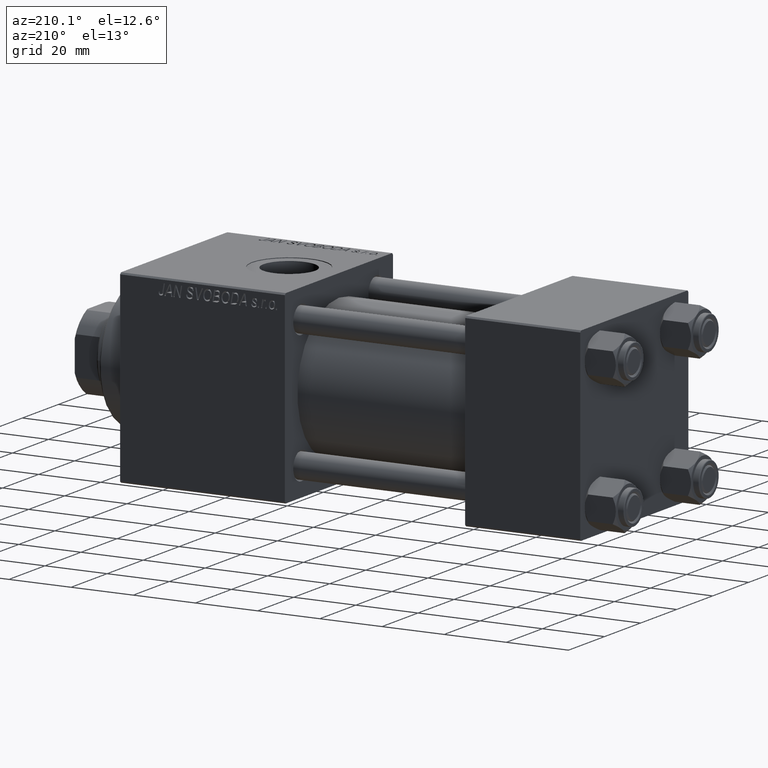
[diagram: clean part render]
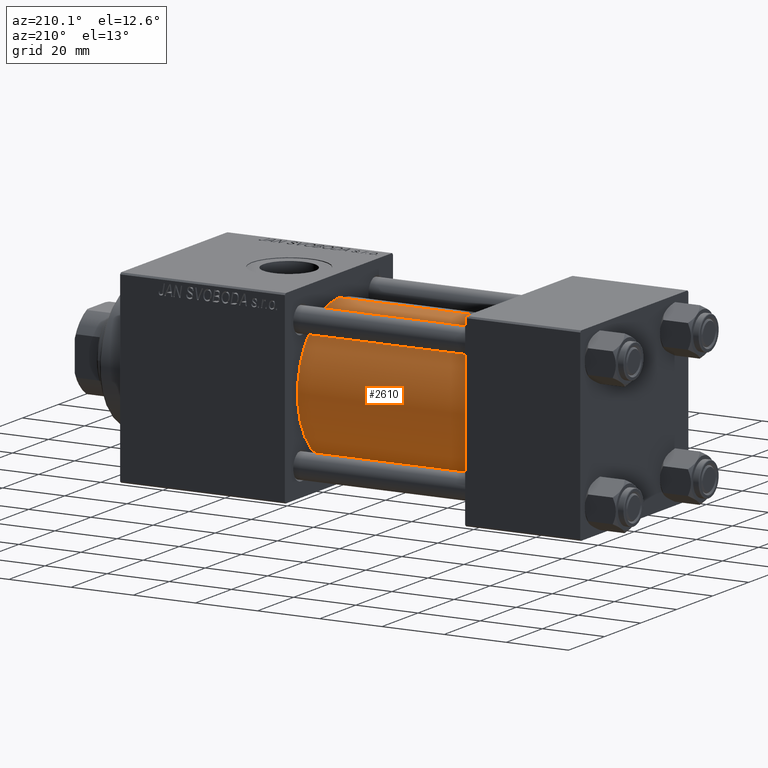
[diagram: same view with one face highlighted and labeled with its STEP entity id]
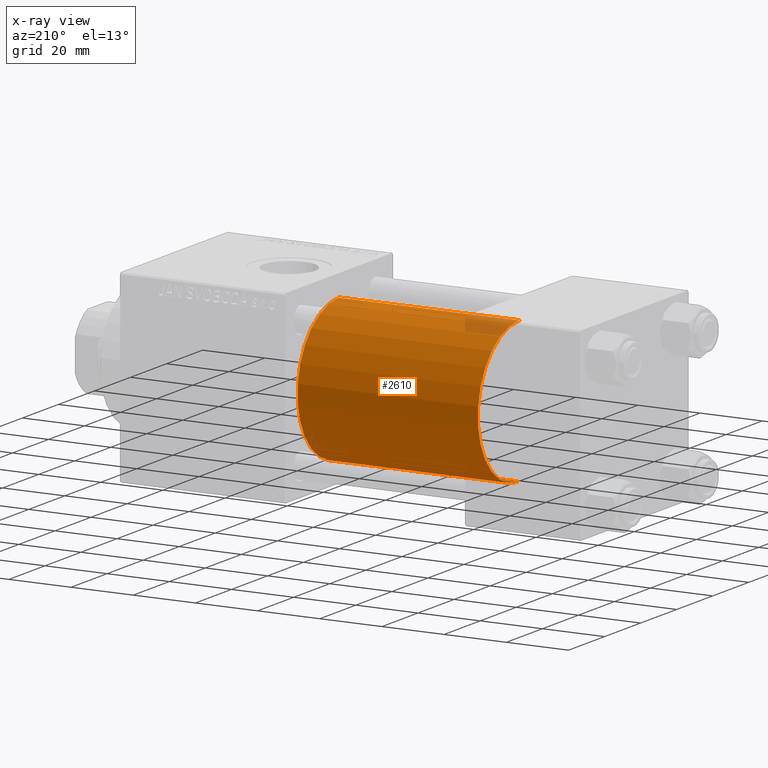
[diagram: x-ray of the same camera — body ghosted, the highlighted face saturated]
A machine part, auxiliary view. The second image highlights one B-rep face of the part: STEP entity #2610.
The next image is the same camera in x-ray: the body ghosted, the highlighted face saturated — about 3% of this face is hidden behind the body in this view.
In plain terms, the highlighted cylindrical surface (partial cylindrical patch) has radius 23 mm, axis along (-1, -0, -0).
Its self-contained STEP definition (entity closure, byte-faithful):
#1407 = CARTESIAN_POINT ( 'NONE',  ( 37.00000000000000000, -2.602085213965210642E-15, 0.000000000000000000 ) ) ;
#2610 = ADVANCED_FACE ( 'NONE', ( #9198 ), #24664, .T. ) ;
#3754 = VERTEX_POINT ( 'NONE', #24924 ) ;
#3810 = VERTEX_POINT ( 'NONE', #7168 ) ;
#5911 = CARTESIAN_POINT ( 'NONE',  ( 95.00000000000000000, -2.602085213965210642E-15, 0.000000000000000000 ) ) ;
#5926 = ORIENTED_EDGE ( 'NONE', *, *, #37763, .T. ) ;
#6135 = VECTOR ( 'NONE', #12177, 1000.000000000000000 ) ;
#7168 = CARTESIAN_POINT ( 'NONE',  ( 95.00000000000000000, 2.146024240737012665E-16, -23.00000000000000000 ) ) ;
#8929 = VERTEX_POINT ( 'NONE', #14343 ) ;
#9198 = FACE_OUTER_BOUND ( 'NONE', #12107, .T. ) ;
#9475 = DIRECTION ( 'NONE',  ( 1.000000000000000000, 0.000000000000000000, 0.000000000000000000 ) ) ;
#9694 = DIRECTION ( 'NONE',  ( 0.000000000000000000, 0.000000000000000000, 1.000000000000000000 ) ) ;
#11455 = ORIENTED_EDGE ( 'NONE', *, *, #15105, .T. ) ;
#11494 = AXIS2_PLACEMENT_3D ( 'NONE', #1407, #16887, #46201 ) ;
#12107 = EDGE_LOOP ( 'NONE', ( #37876, #11455, #5926, #29311 ) ) ;
#12177 = DIRECTION ( 'NONE',  ( -1.000000000000000000, -0.000000000000000000, -0.000000000000000000 ) ) ;
#14343 = CARTESIAN_POINT ( 'NONE',  ( 37.00000000000000000, 2.146024240737012665E-16, -23.00000000000000000 ) ) ;
#15105 = EDGE_CURVE ( 'NONE', #3810, #8929, #28388, .T. ) ;
#15586 = AXIS2_PLACEMENT_3D ( 'NONE', #32514, #48034, #9694 ) ;
#16887 = DIRECTION ( 'NONE',  ( 1.000000000000000000, -0.000000000000000000, 0.000000000000000000 ) ) ;
#23442 = VECTOR ( 'NONE', #41937, 1000.000000000000000 ) ;
#24664 = CYLINDRICAL_SURFACE ( 'NONE', #15586, 23.00000000000000000 ) ;
#24924 = CARTESIAN_POINT ( 'NONE',  ( 95.00000000000000000, -2.602085213965210642E-15, 23.00000000000000000 ) ) ;
#27074 = EDGE_CURVE ( 'NONE', #3754, #34203, #34324, .T. ) ;
#27400 = CARTESIAN_POINT ( 'NONE',  ( 95.00000000000000000, 2.146024240737012665E-16, -23.00000000000000000 ) ) ;
#28257 = CARTESIAN_POINT ( 'NONE',  ( 37.00000000000000000, -2.602085213965210642E-15, 23.00000000000000000 ) ) ;
#28388 = LINE ( 'NONE', #27400, #6135 ) ;
#28492 = CIRCLE ( 'NONE', #30132, 23.00000000000000000 ) ;
#29311 = ORIENTED_EDGE ( 'NONE', *, *, #27074, .F. ) ;
#30132 = AXIS2_PLACEMENT_3D ( 'NONE', #5911, #9475, #40411 ) ;
#32514 = CARTESIAN_POINT ( 'NONE',  ( 95.00000000000000000, -2.602085213965210642E-15, 0.000000000000000000 ) ) ;
#34203 = VERTEX_POINT ( 'NONE', #28257 ) ;
#34324 = LINE ( 'NONE', #34815, #23442 ) ;
#34815 = CARTESIAN_POINT ( 'NONE',  ( 95.00000000000000000, -2.602085213965210642E-15, 23.00000000000000000 ) ) ;
#35806 = CIRCLE ( 'NONE', #11494, 23.00000000000000000 ) ;
#37242 = EDGE_CURVE ( 'NONE', #3810, #3754, #28492, .T. ) ;
#37763 = EDGE_CURVE ( 'NONE', #8929, #34203, #35806, .T. ) ;
#37876 = ORIENTED_EDGE ( 'NONE', *, *, #37242, .F. ) ;
#40411 = DIRECTION ( 'NONE',  ( 0.000000000000000000, 0.000000000000000000, -1.000000000000000000 ) ) ;
#41937 = DIRECTION ( 'NONE',  ( -1.000000000000000000, -0.000000000000000000, -0.000000000000000000 ) ) ;
#46201 = DIRECTION ( 'NONE',  ( 0.000000000000000000, 0.000000000000000000, 1.000000000000000000 ) ) ;
#48034 = DIRECTION ( 'NONE',  ( -1.000000000000000000, -0.000000000000000000, -0.000000000000000000 ) ) ;